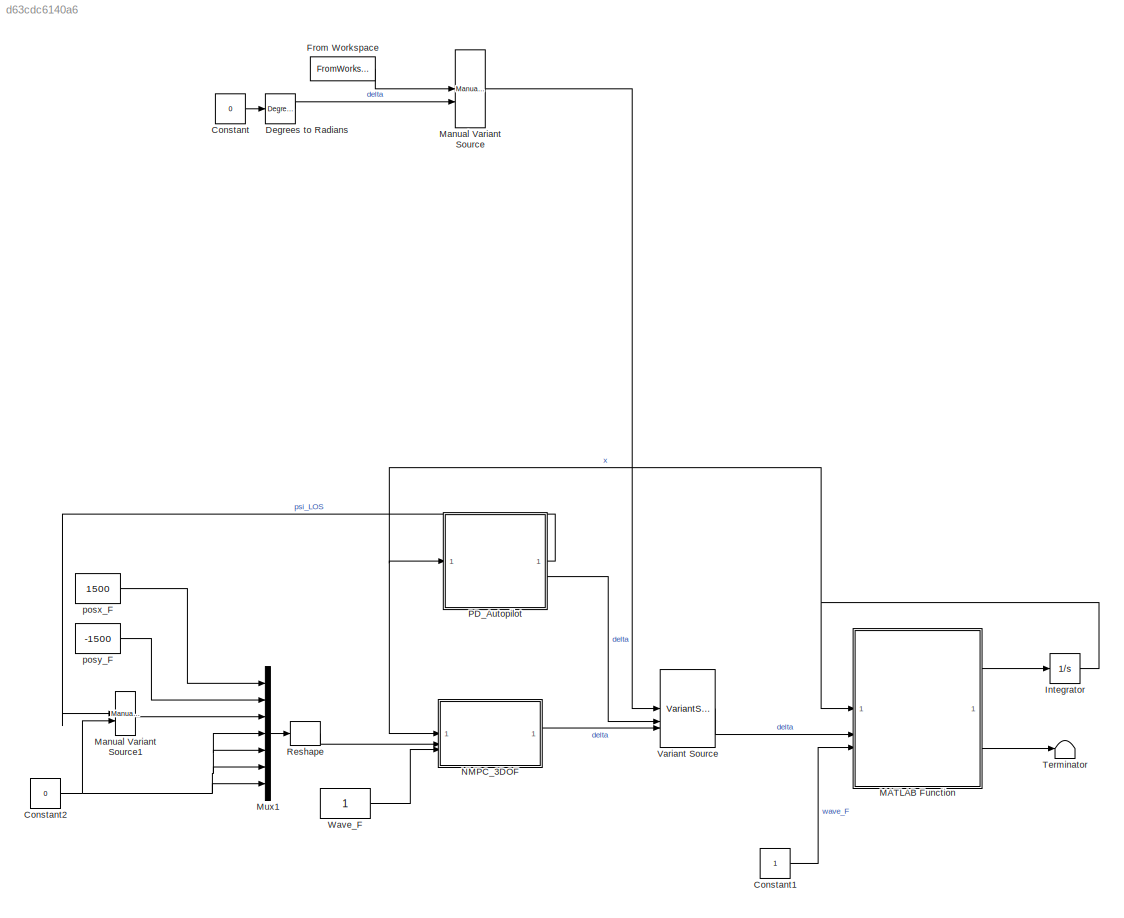
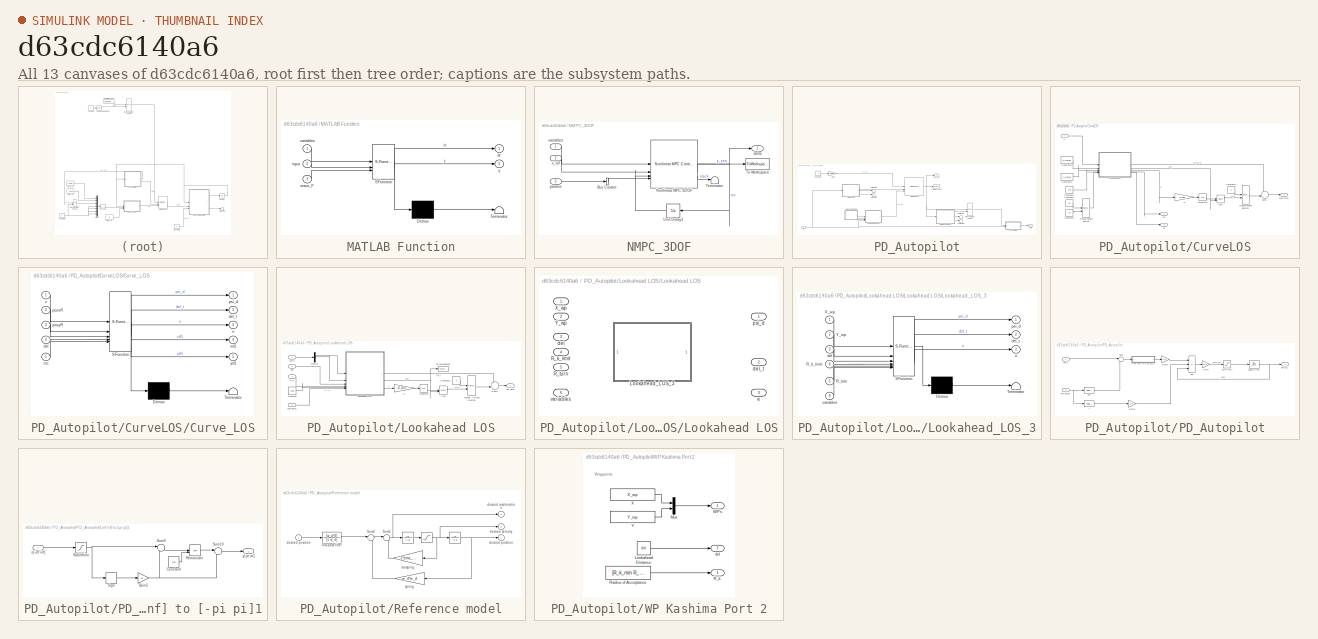
[diagram: thumbnail index - all 13 canvases of the model, root first then tree order]
MODEL slx_d63cdc6140a6
KIND model
CONFIG AbsTol = auto
CONFIG EnableMultiTasking = off
CONFIG FixedStep = 0.01
CONFIG MaxStep = auto
CONFIG MinStep = auto
CONFIG RelTol = 1e-3
CONFIG SampleTimeConstraint = Unconstrained
CONFIG SolverName = ode4
CONFIG StartTime = 0.0
CONFIG StopFcn = post_plot_bulker
CONFIG StopTime = 3600
BLOCK [Constant] Constant
  Value = 0
BLOCK [Constant] Constant1
BLOCK [Constant] Constant2
  Value = 0
BLOCK [Reference] Degrees to Radians  REF=simulink_extras/Transformations/Degrees to
Radians
  SourceBlock = simulink_extras/Transformations/Degrees to\nRadians
  SourceType = DegreesToRadians
BLOCK [FromWorkspace] From Workspace
  OutputAfterFinalValue = Holding final value
  VariableName = deltaTS
BLOCK [Integrator] Integrator
  InitialCondition = x0
BLOCK [SubSystem] MATLAB Function
  ErrorFcn = Stateflow.Translate.translate
  PermitHierarchicalResolution = ExplicitOnly
  SFBlockType = MATLAB Function
  TreatAsAtomicUnit = on
BLOCK [Demux] MATLAB Function/ Demux 
  Outputs = 1
BLOCK [S-Function] MATLAB Function/ SFunction 
  EnableBusSupport = off
  FunctionName = sf_sfun
  PortCounts = [3 3]
  SFcnIsStateOwnerBlock = off
  SFunctionDeploymentMode = off
  Tag = Stateflow S-Function 2
BLOCK [Terminator] MATLAB Function/ Terminator 
BLOCK [Outport] MATLAB Function/dt
BLOCK [Inport] MATLAB Function/input
  Port = 2
BLOCK [Inport] MATLAB Function/variables
BLOCK [Inport] MATLAB Function/wave_F
  Port = 3
BLOCK [Outport] MATLAB Function/y
  Port = 2
BLOCK [Reference] Manual Variant Source  REF=simulink/Signal
Routing/Manual
Variant Source
  SourceBlock = simulink/Signal\nRouting/Manual\nVariant Source
  SourceType = ManualVariantSource
BLOCK [Reference] Manual Variant Source1  REF=simulink/Signal
Routing/Manual
Variant Source
  SourceBlock = simulink/Signal\nRouting/Manual\nVariant Source
  SourceType = ManualVariantSource
BLOCK [Mux] Mux1
  DisplayOption = bar
  Inputs = 7
BLOCK [SubSystem] NMPC_3DOF
  VariantControl = Variant
BLOCK [BusCreator] NMPC_3DOF/Bus Creator
  DisplayOption = bar
  InheritFromInputs = off
  Inputs = 1
  NonVirtualBus = on
  OutDataTypeStr = Bus: params_bus_object
BLOCK [Reference] NMPC_3DOF/Nonlinear MPC 3DOF  REF=mpclib/Nonlinear MPC Controller  (lib defined in mdl_ae329e0e0455)
  SCDEnableBlockLinearizationSpecification = on
  SourceBlock = mpclib/Nonlinear MPC Controller
  SourceType = NonlinearMPC
BLOCK [Terminator] NMPC_3DOF/Terminator
BLOCK [ToWorkspace] NMPC_3DOF/To Workspace
  FixptAsFi = on
  MaxDataPoints = inf
  SampleTime = -1
  SaveFormat = Timeseries
  VariableName = y_seq
BLOCK [UnitDelay] NMPC_3DOF/Unit Delay2
  HasFrameUpgradeWarning = on
  SampleTime = -1
BLOCK [Outport] NMPC_3DOF/delta
  VectorParamsAs1DForOutWhenUnconnected = off
BLOCK [Inport] NMPC_3DOF/params
  Port = 3
BLOCK [Inport] NMPC_3DOF/variables
BLOCK [Inport] NMPC_3DOF/x_ref
  Port = 2
BLOCK [SubSystem] PD_Autopilot
BLOCK [Constant] PD_Autopilot/Constant
  Value = -9
BLOCK [SubSystem] PD_Autopilot/CurveLOS
  Commented = on
BLOCK [Trigonometry] PD_Autopilot/CurveLOS/Atan
  Operator = atan2
BLOCK [Constant] PD_Autopilot/CurveLOS/Constant1
  Value = 20
BLOCK [Constant] PD_Autopilot/CurveLOS/Constant2
  Value = 0
BLOCK [Constant] PD_Autopilot/CurveLOS/Constant4
  Value = 400
BLOCK [Constant] PD_Autopilot/CurveLOS/Constant5
  Value = y_Curve
BLOCK [Constant] PD_Autopilot/CurveLOS/Constant6
  Value = x_Curve
BLOCK [Constant] PD_Autopilot/CurveLOS/Constant7
  Value = 50
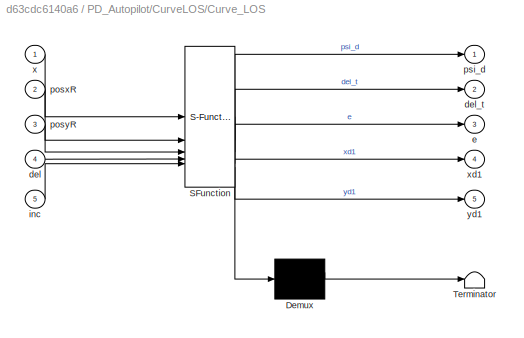
BLOCK [SubSystem] PD_Autopilot/CurveLOS/Curve_LOS
  ErrorFcn = Stateflow.Translate.translate
  PermitHierarchicalResolution = ExplicitOnly
  SFBlockType = MATLAB Function
  TreatAsAtomicUnit = on
BLOCK [Demux] PD_Autopilot/CurveLOS/Curve_LOS/ Demux 
  Outputs = 1
BLOCK [S-Function] PD_Autopilot/CurveLOS/Curve_LOS/ SFunction 
  EnableBusSupport = off
  FunctionName = sf_sfun
  PortCounts = [5 6]
  SFcnIsStateOwnerBlock = off
  SFunctionDeploymentMode = off
  Tag = Stateflow S-Function 12
BLOCK [Terminator] PD_Autopilot/CurveLOS/Curve_LOS/ Terminator 
BLOCK [Inport] PD_Autopilot/CurveLOS/Curve_LOS/del
  Port = 4
BLOCK [Outport] PD_Autopilot/CurveLOS/Curve_LOS/del_t
  Port = 2
  VectorParamsAs1DForOutWhenUnconnected = off
BLOCK [Outport] PD_Autopilot/CurveLOS/Curve_LOS/e
  Port = 3
  VectorParamsAs1DForOutWhenUnconnected = off
BLOCK [Inport] PD_Autopilot/CurveLOS/Curve_LOS/inc
  Port = 5
BLOCK [Inport] PD_Autopilot/CurveLOS/Curve_LOS/posxR
  Port = 2
BLOCK [Inport] PD_Autopilot/CurveLOS/Curve_LOS/posyR
  Port = 3
BLOCK [Outport] PD_Autopilot/CurveLOS/Curve_LOS/psi_d
  VectorParamsAs1DForOutWhenUnconnected = off
BLOCK [Inport] PD_Autopilot/CurveLOS/Curve_LOS/x
BLOCK [Outport] PD_Autopilot/CurveLOS/Curve_LOS/xd1
  Port = 4
  VectorParamsAs1DForOutWhenUnconnected = off
BLOCK [Outport] PD_Autopilot/CurveLOS/Curve_LOS/yd1
  Port = 5
  VectorParamsAs1DForOutWhenUnconnected = off
BLOCK [Integrator] PD_Autopilot/CurveLOS/Integrator
BLOCK [Gain] PD_Autopilot/CurveLOS/Ki
  Gain = -0.001
BLOCK [Reference] PD_Autopilot/CurveLOS/Manual Variant Source  REF=simulink/Signal
Routing/Manual
Variant Source
  SourceBlock = simulink/Signal\nRouting/Manual\nVariant Source
  SourceType = ManualVariantSource
BLOCK [Reference] PD_Autopilot/CurveLOS/Manual Variant Source1  REF=simulink/Signal
Routing/Manual
Variant Source
  SourceBlock = simulink/Signal\nRouting/Manual\nVariant Source
  SourceType = ManualVariantSource
BLOCK [Sum] PD_Autopilot/CurveLOS/Sum1
  Inputs = ++|
BLOCK [Outport] PD_Autopilot/CurveLOS/psi_Curve
  VectorParamsAs1DForOutWhenUnconnected = off
BLOCK [Inport] PD_Autopilot/CurveLOS/x
BLOCK [Outport] PD_Autopilot/CurveLOS/xd
  Port = 2
  VectorParamsAs1DForOutWhenUnconnected = off
BLOCK [Outport] PD_Autopilot/CurveLOS/yd
  Port = 3
  VectorParamsAs1DForOutWhenUnconnected = off
BLOCK [Gain] PD_Autopilot/Gain
  Gain = pi/180
BLOCK [SubSystem] PD_Autopilot/Lookahead LOS
BLOCK [Trigonometry] PD_Autopilot/Lookahead LOS/Atan
  Operator = atan2
BLOCK [Constant] PD_Autopilot/Lookahead LOS/Constant
  Value = 1000
BLOCK [Constant] PD_Autopilot/Lookahead LOS/Constant2
  Value = 0
BLOCK [Demux] PD_Autopilot/Lookahead LOS/Demux
  Outputs = 2
BLOCK [Integrator] PD_Autopilot/Lookahead LOS/Integrator
BLOCK [Gain] PD_Autopilot/Lookahead LOS/Ki
  Gain = -0.001
BLOCK [SubSystem] PD_Autopilot/Lookahead LOS/Lookahead LOS
  LabelModeActiveChoice = varient3
  Variant = on
  VariantControl = Choice
  VariantControlMode = label
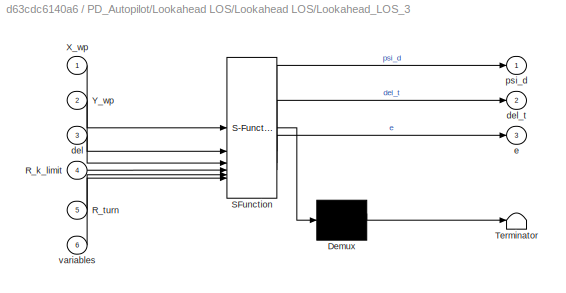
BLOCK [SubSystem] PD_Autopilot/Lookahead LOS/Lookahead LOS/Lookahead_LOS_3
  ErrorFcn = Stateflow.Translate.translate
  PermitHierarchicalResolution = ExplicitOnly
  SFBlockType = MATLAB Function
  TreatAsAtomicUnit = on
  VariantControl = varient3
BLOCK [Demux] PD_Autopilot/Lookahead LOS/Lookahead LOS/Lookahead_LOS_3/ Demux 
  Outputs = 1
BLOCK [S-Function] PD_Autopilot/Lookahead LOS/Lookahead LOS/Lookahead_LOS_3/ SFunction 
  EnableBusSupport = off
  FunctionName = sf_sfun
  PortCounts = [6 4]
  SFcnIsStateOwnerBlock = off
  SFunctionDeploymentMode = off
  Tag = Stateflow S-Function 8
BLOCK [Terminator] PD_Autopilot/Lookahead LOS/Lookahead LOS/Lookahead_LOS_3/ Terminator 
BLOCK [Inport] PD_Autopilot/Lookahead LOS/Lookahead LOS/Lookahead_LOS_3/R_k_limit
  Port = 4
BLOCK [Inport] PD_Autopilot/Lookahead LOS/Lookahead LOS/Lookahead_LOS_3/R_turn
  Port = 5
BLOCK [Inport] PD_Autopilot/Lookahead LOS/Lookahead LOS/Lookahead_LOS_3/X_wp
BLOCK [Inport] PD_Autopilot/Lookahead LOS/Lookahead LOS/Lookahead_LOS_3/Y_wp
  Port = 2
BLOCK [Inport] PD_Autopilot/Lookahead LOS/Lookahead LOS/Lookahead_LOS_3/del
  Port = 3
BLOCK [Outport] PD_Autopilot/Lookahead LOS/Lookahead LOS/Lookahead_LOS_3/del_t
  Port = 2
  VectorParamsAs1DForOutWhenUnconnected = off
BLOCK [Outport] PD_Autopilot/Lookahead LOS/Lookahead LOS/Lookahead_LOS_3/e
  Port = 3
  VectorParamsAs1DForOutWhenUnconnected = off
BLOCK [Outport] PD_Autopilot/Lookahead LOS/Lookahead LOS/Lookahead_LOS_3/psi_d
  VectorParamsAs1DForOutWhenUnconnected = off
BLOCK [Inport] PD_Autopilot/Lookahead LOS/Lookahead LOS/Lookahead_LOS_3/variables
  Port = 6
BLOCK [Inport] PD_Autopilot/Lookahead LOS/Lookahead LOS/R_k_limit
  Port = 4
BLOCK [Inport] PD_Autopilot/Lookahead LOS/Lookahead LOS/R_turn
  Port = 5
BLOCK [Inport] PD_Autopilot/Lookahead LOS/Lookahead LOS/X_wp
BLOCK [Inport] PD_Autopilot/Lookahead LOS/Lookahead LOS/Y_wp
  Port = 2
BLOCK [Inport] PD_Autopilot/Lookahead LOS/Lookahead LOS/del
  Port = 3
BLOCK [Outport] PD_Autopilot/Lookahead LOS/Lookahead LOS/del_t
  Port = 2
  VectorParamsAs1DForOutWhenUnconnected = off
BLOCK [Outport] PD_Autopilot/Lookahead LOS/Lookahead LOS/e
  Port = 3
  VectorParamsAs1DForOutWhenUnconnected = off
BLOCK [Outport] PD_Autopilot/Lookahead LOS/Lookahead LOS/psi_d
  VectorParamsAs1DForOutWhenUnconnected = off
BLOCK [Inport] PD_Autopilot/Lookahead LOS/Lookahead LOS/variables
  Port = 6
BLOCK [Reference] PD_Autopilot/Lookahead LOS/Manual Variant Source1  REF=simulink/Signal
Routing/Manual
Variant Source
  SourceBlock = simulink/Signal\nRouting/Manual\nVariant Source
  SourceType = ManualVariantSource
BLOCK [Inport] PD_Autopilot/Lookahead LOS/R_k
  Port = 3
BLOCK [Sum] PD_Autopilot/Lookahead LOS/Sum1
  Inputs = ++|
BLOCK [ToWorkspace] PD_Autopilot/Lookahead LOS/To Workspace2
  FixptAsFi = on
  MaxDataPoints = inf
  SampleTime = -1
  SaveFormat = Timeseries
  VariableName = del_t
BLOCK [Inport] PD_Autopilot/Lookahead LOS/WPs
BLOCK [Inport] PD_Autopilot/Lookahead LOS/del
  Port = 2
BLOCK [Outport] PD_Autopilot/Lookahead LOS/psi_dtot
  VectorParamsAs1DForOutWhenUnconnected = off
BLOCK [Inport] PD_Autopilot/Lookahead LOS/variables
  Port = 4
BLOCK [Reference] PD_Autopilot/Manual Variant Source  REF=simulink/Signal
Routing/Manual
Variant Source
  SourceBlock = simulink/Signal\nRouting/Manual\nVariant Source
  SourceType = ManualVariantSource
BLOCK [SubSystem] PD_Autopilot/PD_Autopilot
BLOCK [Sum] PD_Autopilot/PD_Autopilot/Add
  IconShape = rectangular
  Inputs = ---
BLOCK [Gain] PD_Autopilot/PD_Autopilot/Gain
  Gain = 1/T_E
BLOCK [Gain] PD_Autopilot/PD_Autopilot/Gain1
  Gain = K_P
BLOCK [Gain] PD_Autopilot/PD_Autopilot/Gain2
  Gain = T_D
BLOCK [Sum] PD_Autopilot/PD_Autopilot/Sum
  Inputs = |-+
BLOCK [SubSystem] PD_Autopilot/PD_Autopilot/[-inf inf] to [-pi pi]1
BLOCK [Constant] PD_Autopilot/PD_Autopilot/[-inf inf] to [-pi pi]1/Constant
  Value = 2*pi
BLOCK [Gain] PD_Autopilot/PD_Autopilot/[-inf inf] to [-pi pi]1/Gain3
  Gain = pi
BLOCK [Math] PD_Autopilot/PD_Autopilot/[-inf inf] to [-pi pi]1/Remainder
  Operator = rem
  SignedPower = on
BLOCK [Saturate] PD_Autopilot/PD_Autopilot/[-inf inf] to [-pi pi]1/Saturation
  LowerLimit = -1e10
  UpperLimit = 1e10
BLOCK [Signum] PD_Autopilot/PD_Autopilot/[-inf inf] to [-pi pi]1/Sign
BLOCK [Sum] PD_Autopilot/PD_Autopilot/[-inf inf] to [-pi pi]1/Sum10
  Inputs = |+-
BLOCK [Sum] PD_Autopilot/PD_Autopilot/[-inf inf] to [-pi pi]1/Sum9
  Inputs = |++
BLOCK [Inport] PD_Autopilot/PD_Autopilot/[-inf inf] to [-pi pi]1/x[-inf inf]
BLOCK [Outport] PD_Autopilot/PD_Autopilot/[-inf inf] to [-pi pi]1/y[-pi pi]
  VectorParamsAs1DForOutWhenUnconnected = off
BLOCK [Integrator] PD_Autopilot/PD_Autopilot/angle limit
  LimitOutput = on
  LowerSaturationLimit = -delta_max*pi/180
  UpperSaturationLimit = delta_max*pi/180
BLOCK [Outport] PD_Autopilot/PD_Autopilot/delta_c
  VectorParamsAs1DForOutWhenUnconnected = off
BLOCK [Selector] PD_Autopilot/PD_Autopilot/psi
  IndexOptions = Index vector (dialog)
  Indices = [3]
  InputPortWidth = 7
  OutputSizes = 1
BLOCK [Inport] PD_Autopilot/PD_Autopilot/psi_r
BLOCK [Selector] PD_Autopilot/PD_Autopilot/r
  IndexOptions = Index vector (dialog)
  Indices = [6]
  InputPortWidth = 7
  OutputSizes = 1
BLOCK [Saturate] PD_Autopilot/PD_Autopilot/rate limit
  LowerLimit = -delta_rate*pi/180
  UpperLimit = delta_rate*pi/180
BLOCK [Inport] PD_Autopilot/PD_Autopilot/variables
  Port = 2
BLOCK [SubSystem] PD_Autopilot/Reference model
  Commented = on
BLOCK [TransferFcn] PD_Autopilot/Reference model/    
  Denominator = [1 0]
BLOCK [Saturate] PD_Autopilot/Reference model/       
  LowerLimit = -v_max
  UpperLimit = v_max
BLOCK [TransferFcn] PD_Autopilot/Reference model/         
  Denominator = [1 0]
BLOCK [Sum] PD_Autopilot/Reference model/Sum2
  InputSameDT = on
  Inputs = |+-
  OutDataTypeStr = Inherit: Same as first input
  SaturateOnIntegerOverflow = on
BLOCK [Sum] PD_Autopilot/Reference model/Sum5
  InputSameDT = on
  Inputs = |+-
  OutDataTypeStr = Inherit: Same as first input
  SaturateOnIntegerOverflow = on
BLOCK [Gain] PD_Autopilot/Reference model/damping
  Gain = 2*zeta_d*w_d
  OutDataTypeStr = Inherit: Same as input
  ParamDataTypeStr = Inherit: Same as input
  SaturateOnIntegerOverflow = on
BLOCK [Outport] PD_Autopilot/Reference model/desired acceleration
  InitialOutput = 0
  Port = 3
  VectorParamsAs1DForOutWhenUnconnected = off
BLOCK [Inport] PD_Autopilot/Reference model/desired position
BLOCK [Outport] PD_Autopilot/Reference model/desired position 
  InitialOutput = 0
  VectorParamsAs1DForOutWhenUnconnected = off
BLOCK [Outport] PD_Autopilot/Reference model/desired velocity
  InitialOutput = 0
  Port = 2
  VectorParamsAs1DForOutWhenUnconnected = off
BLOCK [TransferFcn] PD_Autopilot/Reference model/low-pass filter
  Denominator = [1 w_d]
  Numerator = [w_d^3]
BLOCK [Gain] PD_Autopilot/Reference model/spring
  Gain = w_d*w_d
  OutDataTypeStr = Inherit: Same as input
  ParamDataTypeStr = Inherit: Same as input
  SaturateOnIntegerOverflow = on
BLOCK [Terminator] PD_Autopilot/Terminator
BLOCK [Terminator] PD_Autopilot/Terminator1
BLOCK [Terminator] PD_Autopilot/Terminator2
BLOCK [Terminator] PD_Autopilot/Terminator3
BLOCK [ToWorkspace] PD_Autopilot/To Workspace2
  FixptAsFi = on
  MaxDataPoints = inf
  SampleTime = -1
  SaveFormat = Timeseries
  VariableName = psi_LOS
BLOCK [VariantSource] PD_Autopilot/Variant Source
  LabelModeActiveChoice = PD_Only
  ShowConditionOnBlock = on
  VariantControlMode = label
BLOCK [SubSystem] PD_Autopilot/WP Kashima Port 2
BLOCK [Constant] PD_Autopilot/WP Kashima Port 2/Lookahead Distance
  Value = del
BLOCK [Mux] PD_Autopilot/WP Kashima Port 2/Mux
  DisplayOption = bar
  Inputs = 2
BLOCK [Outport] PD_Autopilot/WP Kashima Port 2/R_k
  Port = 3
  VectorParamsAs1DForOutWhenUnconnected = off
BLOCK [Constant] PD_Autopilot/WP Kashima Port 2/Radius of Acceptance
  Value = [R_k_min R_k_max]
BLOCK [Outport] PD_Autopilot/WP Kashima Port 2/WPs
  VectorParamsAs1DForOutWhenUnconnected = off
BLOCK [Constant] PD_Autopilot/WP Kashima Port 2/X
  Value = X_wp
BLOCK [Constant] PD_Autopilot/WP Kashima Port 2/Y
  Value = Y_wp
BLOCK [Outport] PD_Autopilot/WP Kashima Port 2/del
  Port = 2
  VectorParamsAs1DForOutWhenUnconnected = off
BLOCK [Outport] PD_Autopilot/delta
  Port = 2
  VectorParamsAs1DForOutWhenUnconnected = off
BLOCK [Outport] PD_Autopilot/psi_LOS
  VectorParamsAs1DForOutWhenUnconnected = off
BLOCK [Inport] PD_Autopilot/x
BLOCK [Reshape] Reshape
  OutputDimensionality = Row vector (2-D)
BLOCK [Terminator] Terminator
BLOCK [VariantSource] Variant Source
  LabelModeActiveChoice = I-S-LOS-PD
  ShowConditionOnBlock = on
  VariantControlMode = label
BLOCK [Constant] Wave_F
BLOCK [Constant] posx_F
  Value = 1500
BLOCK [Constant] posy_F
  Value = -1500
ANNOTATION PD_Autopilot/WP Kashima Port 2: Waypoints
LINE Constant1:1 -> MATLAB Function:3
NET Constant2:1 -> Manual Variant Source1:2, Mux1:4, Mux1:5, Mux1:6, Mux1:7
LINE Constant:1 -> Degrees to Radians:1
LINE Degrees to Radians:1 -> Manual Variant Source:2
LINE From Workspace:1 -> Manual Variant Source:1
NET Integrator:1 -> MATLAB Function:1, NMPC_3DOF:1, PD_Autopilot:1
LINE MATLAB Function:1 -> Integrator:1
LINE MATLAB Function:2 -> Terminator:1
LINE Manual Variant Source1:1 -> Mux1:3
LINE Manual Variant Source:1 -> Variant Source:1
LINE Mux1:1 -> Reshape:1
LINE NMPC_3DOF/Bus Creator:1 -> NMPC_3DOF/Nonlinear MPC 3DOF:4
NET NMPC_3DOF/Nonlinear MPC 3DOF:1 -> NMPC_3DOF/Unit Delay2:1, NMPC_3DOF/delta:1
LINE NMPC_3DOF/Nonlinear MPC 3DOF:2 -> NMPC_3DOF/To Workspace:1
LINE NMPC_3DOF/Nonlinear MPC 3DOF:3 -> NMPC_3DOF/Terminator:1
LINE NMPC_3DOF/Unit Delay2:1 -> NMPC_3DOF/Nonlinear MPC 3DOF:3
LINE NMPC_3DOF/params:1 -> NMPC_3DOF/Bus Creator:1
LINE NMPC_3DOF/variables:1 -> NMPC_3DOF/Nonlinear MPC 3DOF:1
LINE NMPC_3DOF/x_ref:1 -> NMPC_3DOF/Nonlinear MPC 3DOF:2
LINE NMPC_3DOF:1 -> Variant Source:3
LINE PD_Autopilot/Constant:1 -> PD_Autopilot/Gain:1
LINE PD_Autopilot/CurveLOS/Atan:1 -> PD_Autopilot/CurveLOS/Manual Variant Source1:2
LINE PD_Autopilot/CurveLOS/Constant1:1 -> PD_Autopilot/CurveLOS/Manual Variant Source:2
LINE PD_Autopilot/CurveLOS/Constant2:1 -> PD_Autopilot/CurveLOS/Manual Variant Source1:1
LINE PD_Autopilot/CurveLOS/Constant4:1 -> PD_Autopilot/CurveLOS/Curve_LOS:4
LINE PD_Autopilot/CurveLOS/Constant5:1 -> PD_Autopilot/CurveLOS/Curve_LOS:3
LINE PD_Autopilot/CurveLOS/Constant6:1 -> PD_Autopilot/CurveLOS/Curve_LOS:2
LINE PD_Autopilot/CurveLOS/Constant7:1 -> PD_Autopilot/CurveLOS/Manual Variant Source:1
LINE PD_Autopilot/CurveLOS/Curve_LOS:1 -> PD_Autopilot/CurveLOS/Sum1:1
LINE PD_Autopilot/CurveLOS/Curve_LOS:2 -> PD_Autopilot/CurveLOS/Atan:2
LINE PD_Autopilot/CurveLOS/Curve_LOS:3 -> PD_Autopilot/CurveLOS/Ki:1
LINE PD_Autopilot/CurveLOS/Curve_LOS:4 -> PD_Autopilot/CurveLOS/xd:1
LINE PD_Autopilot/CurveLOS/Curve_LOS:5 -> PD_Autopilot/CurveLOS/yd:1
LINE PD_Autopilot/CurveLOS/Integrator:1 -> PD_Autopilot/CurveLOS/Atan:1
LINE PD_Autopilot/CurveLOS/Ki:1 -> PD_Autopilot/CurveLOS/Integrator:1
LINE PD_Autopilot/CurveLOS/Manual Variant Source1:1 -> PD_Autopilot/CurveLOS/Sum1:2
LINE PD_Autopilot/CurveLOS/Manual Variant Source:1 -> PD_Autopilot/CurveLOS/Curve_LOS:5
LINE PD_Autopilot/CurveLOS/Sum1:1 -> PD_Autopilot/CurveLOS/psi_Curve:1
LINE PD_Autopilot/CurveLOS/x:1 -> PD_Autopilot/CurveLOS/Curve_LOS:1
LINE PD_Autopilot/CurveLOS:1 -> PD_Autopilot/Variant Source:2
LINE PD_Autopilot/CurveLOS:2 -> PD_Autopilot/Terminator2:1
LINE PD_Autopilot/CurveLOS:3 -> PD_Autopilot/Terminator3:1
LINE PD_Autopilot/Gain:1 -> PD_Autopilot/Variant Source:1
LINE PD_Autopilot/Lookahead LOS/Atan:1 -> PD_Autopilot/Lookahead LOS/Manual Variant Source1:2
LINE PD_Autopilot/Lookahead LOS/Constant2:1 -> PD_Autopilot/Lookahead LOS/Manual Variant Source1:1
LINE PD_Autopilot/Lookahead LOS/Constant:1 -> PD_Autopilot/Lookahead LOS/Lookahead LOS:5
LINE PD_Autopilot/Lookahead LOS/Demux:1 -> PD_Autopilot/Lookahead LOS/Lookahead LOS:1
LINE PD_Autopilot/Lookahead LOS/Demux:2 -> PD_Autopilot/Lookahead LOS/Lookahead LOS:2
LINE PD_Autopilot/Lookahead LOS/Integrator:1 -> PD_Autopilot/Lookahead LOS/Atan:1
LINE PD_Autopilot/Lookahead LOS/Ki:1 -> PD_Autopilot/Lookahead LOS/Integrator:1
LINE PD_Autopilot/Lookahead LOS/Lookahead LOS:1 -> PD_Autopilot/Lookahead LOS/Sum1:1
NET PD_Autopilot/Lookahead LOS/Lookahead LOS:2 -> PD_Autopilot/Lookahead LOS/Atan:2, PD_Autopilot/Lookahead LOS/To Workspace2:1
LINE PD_Autopilot/Lookahead LOS/Lookahead LOS:3 -> PD_Autopilot/Lookahead LOS/Ki:1
LINE PD_Autopilot/Lookahead LOS/Manual Variant Source1:1 -> PD_Autopilot/Lookahead LOS/Sum1:2
LINE PD_Autopilot/Lookahead LOS/R_k:1 -> PD_Autopilot/Lookahead LOS/Lookahead LOS:4
LINE PD_Autopilot/Lookahead LOS/Sum1:1 -> PD_Autopilot/Lookahead LOS/psi_dtot:1
LINE PD_Autopilot/Lookahead LOS/WPs:1 -> PD_Autopilot/Lookahead LOS/Demux:1
LINE PD_Autopilot/Lookahead LOS/del:1 -> PD_Autopilot/Lookahead LOS/Lookahead LOS:3
LINE PD_Autopilot/Lookahead LOS/variables:1 -> PD_Autopilot/Lookahead LOS/Lookahead LOS:6
LINE PD_Autopilot/Lookahead LOS:1 -> PD_Autopilot/Variant Source:3
LINE PD_Autopilot/Manual Variant Source:1 -> PD_Autopilot/PD_Autopilot:1
LINE PD_Autopilot/PD_Autopilot/Add:1 -> PD_Autopilot/PD_Autopilot/Gain:1
LINE PD_Autopilot/PD_Autopilot/Gain1:1 -> PD_Autopilot/PD_Autopilot/Add:1
LINE PD_Autopilot/PD_Autopilot/Gain2:1 -> PD_Autopilot/PD_Autopilot/Add:2
LINE PD_Autopilot/PD_Autopilot/Gain:1 -> PD_Autopilot/PD_Autopilot/rate limit:1
LINE PD_Autopilot/PD_Autopilot/Sum:1 -> PD_Autopilot/PD_Autopilot/[-inf inf] to [-pi pi]1:1
LINE PD_Autopilot/PD_Autopilot/[-inf inf] to [-pi pi]1/Constant:1 -> PD_Autopilot/PD_Autopilot/[-inf inf] to [-pi pi]1/Remainder:2
NET PD_Autopilot/PD_Autopilot/[-inf inf] to [-pi pi]1/Gain3:1 -> PD_Autopilot/PD_Autopilot/[-inf inf] to [-pi pi]1/Sum10:2, PD_Autopilot/PD_Autopilot/[-inf inf] to [-pi pi]1/Sum9:2
LINE PD_Autopilot/PD_Autopilot/[-inf inf] to [-pi pi]1/Remainder:1 -> PD_Autopilot/PD_Autopilot/[-inf inf] to [-pi pi]1/Sum10:1
NET PD_Autopilot/PD_Autopilot/[-inf inf] to [-pi pi]1/Saturation:1 -> PD_Autopilot/PD_Autopilot/[-inf inf] to [-pi pi]1/Sign:1, PD_Autopilot/PD_Autopilot/[-inf inf] to [-pi pi]1/Sum9:1
LINE PD_Autopilot/PD_Autopilot/[-inf inf] to [-pi pi]1/Sign:1 -> PD_Autopilot/PD_Autopilot/[-inf inf] to [-pi pi]1/Gain3:1
LINE PD_Autopilot/PD_Autopilot/[-inf inf] to [-pi pi]1/Sum10:1 -> PD_Autopilot/PD_Autopilot/[-inf inf] to [-pi pi]1/y[-pi pi]:1
LINE PD_Autopilot/PD_Autopilot/[-inf inf] to [-pi pi]1/Sum9:1 -> PD_Autopilot/PD_Autopilot/[-inf inf] to [-pi pi]1/Remainder:1
LINE PD_Autopilot/PD_Autopilot/[-inf inf] to [-pi pi]1/x[-inf inf]:1 -> PD_Autopilot/PD_Autopilot/[-inf inf] to [-pi pi]1/Saturation:1
LINE PD_Autopilot/PD_Autopilot/[-inf inf] to [-pi pi]1:1 -> PD_Autopilot/PD_Autopilot/Gain1:1
NET PD_Autopilot/PD_Autopilot/angle limit:1 -> PD_Autopilot/PD_Autopilot/Add:3, PD_Autopilot/PD_Autopilot/delta_c:1
LINE PD_Autopilot/PD_Autopilot/psi:1 -> PD_Autopilot/PD_Autopilot/Sum:2
LINE PD_Autopilot/PD_Autopilot/psi_r:1 -> PD_Autopilot/PD_Autopilot/Sum:1
LINE PD_Autopilot/PD_Autopilot/r:1 -> PD_Autopilot/PD_Autopilot/Gain2:1
LINE PD_Autopilot/PD_Autopilot/rate limit:1 -> PD_Autopilot/PD_Autopilot/angle limit:1
NET PD_Autopilot/PD_Autopilot/variables:1 -> PD_Autopilot/PD_Autopilot/psi:1, PD_Autopilot/PD_Autopilot/r:1
LINE PD_Autopilot/PD_Autopilot:1 -> PD_Autopilot/delta:1
LINE PD_Autopilot/Reference model/         :1 -> PD_Autopilot/Reference model/       :1
NET PD_Autopilot/Reference model/       :1 -> PD_Autopilot/Reference model/    :1, PD_Autopilot/Reference model/damping:1, PD_Autopilot/Reference model/desired velocity:1
NET PD_Autopilot/Reference model/    :1 -> PD_Autopilot/Reference model/desired position :1, PD_Autopilot/Reference model/spring:1
LINE PD_Autopilot/Reference model/Sum2:1 -> PD_Autopilot/Reference model/Sum5:1
NET PD_Autopilot/Reference model/Sum5:1 -> PD_Autopilot/Reference model/         :1, PD_Autopilot/Reference model/desired acceleration:1
LINE PD_Autopilot/Reference model/damping:1 -> PD_Autopilot/Reference model/Sum5:2
LINE PD_Autopilot/Reference model/desired position:1 -> PD_Autopilot/Reference model/low-pass filter:1
LINE PD_Autopilot/Reference model/low-pass filter:1 -> PD_Autopilot/Reference model/Sum2:1
LINE PD_Autopilot/Reference model/spring:1 -> PD_Autopilot/Reference model/Sum2:2
LINE PD_Autopilot/Reference model:1 -> PD_Autopilot/Manual Variant Source:2
LINE PD_Autopilot/Reference model:2 -> PD_Autopilot/Terminator:1
LINE PD_Autopilot/Reference model:3 -> PD_Autopilot/Terminator1:1
NET PD_Autopilot/Variant Source:1 -> PD_Autopilot/Manual Variant Source:1, PD_Autopilot/Reference model:1, PD_Autopilot/To Workspace2:1, PD_Autopilot/psi_LOS:1
LINE PD_Autopilot/WP Kashima Port 2/Lookahead Distance:1 -> PD_Autopilot/WP Kashima Port 2/del:1
LINE PD_Autopilot/WP Kashima Port 2/Mux:1 -> PD_Autopilot/WP Kashima Port 2/WPs:1
LINE PD_Autopilot/WP Kashima Port 2/Radius of Acceptance:1 -> PD_Autopilot/WP Kashima Port 2/R_k:1
LINE PD_Autopilot/WP Kashima Port 2/X:1 -> PD_Autopilot/WP Kashima Port 2/Mux:1
LINE PD_Autopilot/WP Kashima Port 2/Y:1 -> PD_Autopilot/WP Kashima Port 2/Mux:2
LINE PD_Autopilot/WP Kashima Port 2:1 -> PD_Autopilot/Lookahead LOS:1
LINE PD_Autopilot/WP Kashima Port 2:2 -> PD_Autopilot/Lookahead LOS:2
LINE PD_Autopilot/WP Kashima Port 2:3 -> PD_Autopilot/Lookahead LOS:3
NET PD_Autopilot/x:1 -> PD_Autopilot/CurveLOS:1, PD_Autopilot/Lookahead LOS:4, PD_Autopilot/PD_Autopilot:2
LINE PD_Autopilot:1 -> Manual Variant Source1:1
LINE PD_Autopilot:2 -> Variant Source:2
LINE Reshape:1 -> NMPC_3DOF:2
LINE Variant Source:1 -> MATLAB Function:2
LINE Wave_F:1 -> NMPC_3DOF:3
LINE posx_F:1 -> Mux1:1
LINE posy_F:1 -> Mux1:2
note: NET lines group one-source signal fan-out (src -> all destinations, sorted); 1:1 wires keep LINE
CHART MATLAB Function states=1 transitions=1
  STATE_LABEL 'eML_blk_kernel()'
  STATE_LABEL 'SCRIPT:\nfunction [dt, y] = Bulker_3DOF(variables,input,wave_F)\nparams = wave_F;\n[dt, y] = Bulker2_StateFunction_3DOF_delta(variables,input,params);\n'
CHART PD_Autopilot/Lookahead LOS/Lookahead LOS/Lookahead_LOS_3 states=1 transitions=1
  STATE_LABEL 'eML_blk_kernel()'
  STATE_LABEL 'SCRIPT:\nfunction [psi_d, del_t, e]   = straightLOS_Sim(X_wp,Y_wp,del,R_k_limit,R_turn,variables)\n\n[psi_d, del_t, e]   = straightLOS(X_wp,Y_wp,del,R_k_limit,R_turn,variables);'
CHART PD_Autopilot/CurveLOS/Curve_LOS states=1 transitions=1
  STATE_LABEL 'eML_blk_kernel()'
  STATE_LABEL 'SCRIPT:\nfunction [psi_d, del_t, e, xd1, yd1] = curveLOS_sim(x, posxR, posyR, del, inc)\n% inc >> increased step >> should be represent the Total Prediction Horizon Time\n[psi_d, xd, yd,del_t,e] = curveLOS(x, posxR, posyR, del, inc);\nxd1 = xd(2);\nyd1 = yd(2);'
CHART  states=0 transitions=0
CHART  states=0 transitions=0
CHART  states=0 transitions=0
